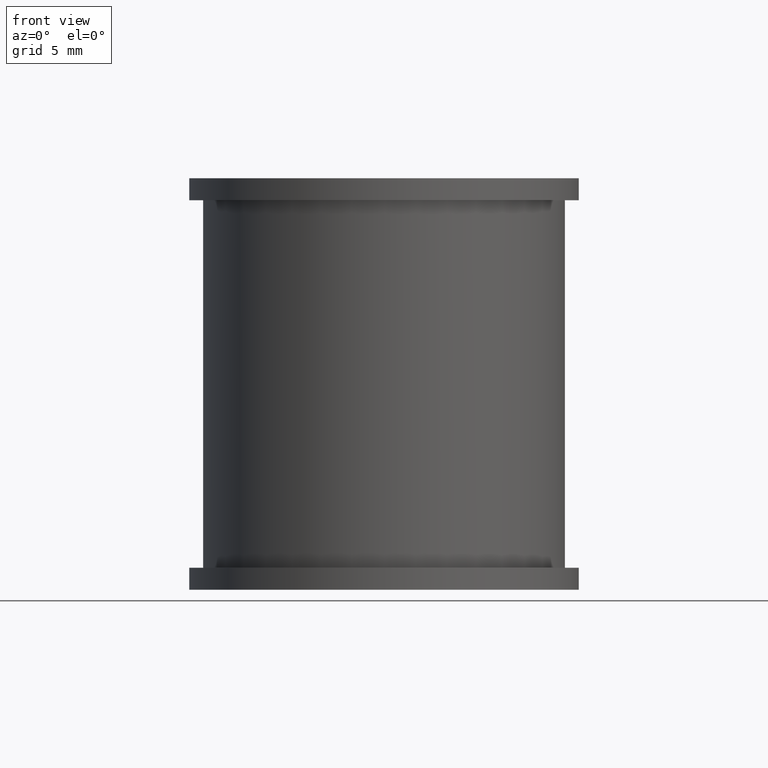
[diagram: clean part render]
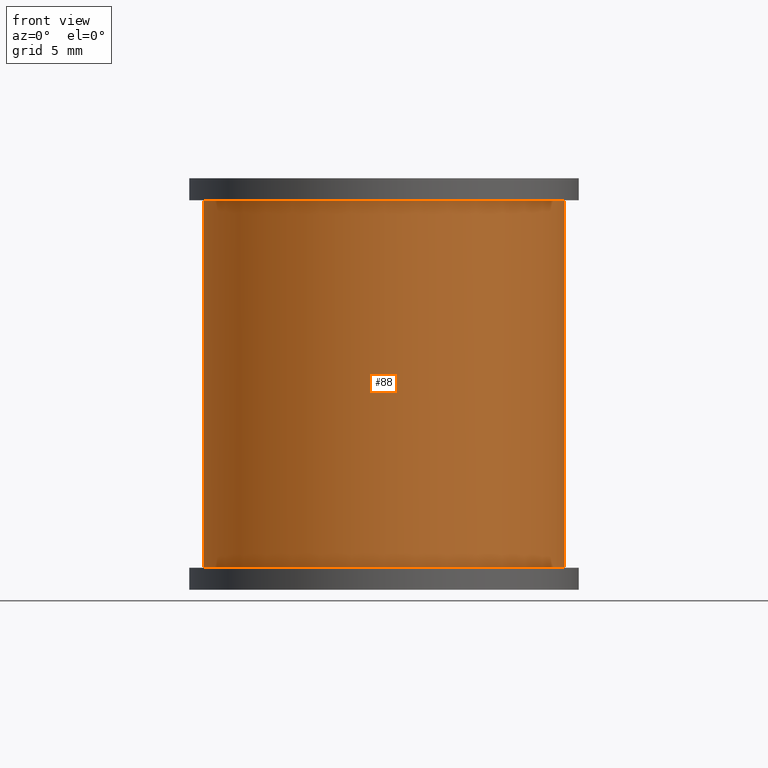
[diagram: same view with one face highlighted and labeled with its STEP entity id]
A machine part, front view. The second image highlights one B-rep face of the part: STEP entity #88.
In plain terms, the highlighted cylindrical surface (partial cylindrical patch) has radius 12.31 mm, axis along (0, 0, -1).
Its self-contained STEP definition (entity closure, byte-faithful):
#88 = ADVANCED_FACE( '', ( #128 ), #129, .T. );
#128 = FACE_OUTER_BOUND( '', #180, .T. );
#129 = CYLINDRICAL_SURFACE( '', #181, 12.3100000000000 );
#180 = EDGE_LOOP( '', ( #337, #338, #339, #340 ) );
#181 = AXIS2_PLACEMENT_3D( '', #341, #342, #343 );
#337 = ORIENTED_EDGE( '', *, *, #445, .F. );
#338 = ORIENTED_EDGE( '', *, *, #491, .T. );
#339 = ORIENTED_EDGE( '', *, *, #453, .T. );
#340 = ORIENTED_EDGE( '', *, *, #490, .T. );
#341 = CARTESIAN_POINT( '', ( 0.000000000000000, 0.000000000000000, -25.0000000000000 ) );
#342 = DIRECTION( '', ( 0.000000000000000, 0.000000000000000, -1.00000000000000 ) );
#343 = DIRECTION( '', ( -0.315031503150315, -0.949081214661239, 0.000000000000000 ) );
#445 = EDGE_CURVE( '', #531, #533, #534, .T. );
#453 = EDGE_CURVE( '', #548, #549, #550, .T. );
#490 = EDGE_CURVE( '', #549, #533, #610, .T. );
#491 = EDGE_CURVE( '', #531, #548, #611, .F. );
#531 = VERTEX_POINT( '', #667 );
#533 = VERTEX_POINT( '', #669 );
#534 = CIRCLE( '', #670, 12.3100000000000 );
#548 = VERTEX_POINT( '', #687 );
#549 = VERTEX_POINT( '', #688 );
#550 = CIRCLE( '', #689, 12.3100000000000 );
#610 = LINE( '', #768, #769 );
#611 = LINE( '', #770, #771 );
#667 = CARTESIAN_POINT( '', ( -5.59154437456324, 10.9668013343586, 0.000000000000000 ) );
#669 = CARTESIAN_POINT( '', ( 5.59154437456324, 10.9668013343586, 0.000000000000000 ) );
#670 = AXIS2_PLACEMENT_3D( '', #807, #808, #809 );
#687 = CARTESIAN_POINT( '', ( -5.59154437456324, 10.9668013343586, -25.0000000000000 ) );
#688 = CARTESIAN_POINT( '', ( 5.59154437456324, 10.9668013343586, -25.0000000000000 ) );
#689 = AXIS2_PLACEMENT_3D( '', #825, #826, #827 );
#768 = CARTESIAN_POINT( '', ( 5.59154437456324, 10.9668013343586, -25.0000000000000 ) );
#769 = VECTOR( '', #898, 1000.00000000000 );
#770 = CARTESIAN_POINT( '', ( -5.59154437456324, 10.9668013343586, -25.0000000000000 ) );
#771 = VECTOR( '', #899, 1000.00000000000 );
#807 = CARTESIAN_POINT( '', ( 0.000000000000000, 0.000000000000000, 0.000000000000000 ) );
#808 = DIRECTION( '', ( 0.000000000000000, 0.000000000000000, 1.00000000000000 ) );
#809 = DIRECTION( '', ( 1.00000000000000, 0.000000000000000, 0.000000000000000 ) );
#825 = CARTESIAN_POINT( '', ( 0.000000000000000, 0.000000000000000, -25.0000000000000 ) );
#826 = DIRECTION( '', ( 0.000000000000000, 0.000000000000000, 1.00000000000000 ) );
#827 = DIRECTION( '', ( 1.00000000000000, 0.000000000000000, 0.000000000000000 ) );
#898 = DIRECTION( '', ( 0.000000000000000, 0.000000000000000, 1.00000000000000 ) );
#899 = DIRECTION( '', ( 0.000000000000000, 0.000000000000000, 1.00000000000000 ) );